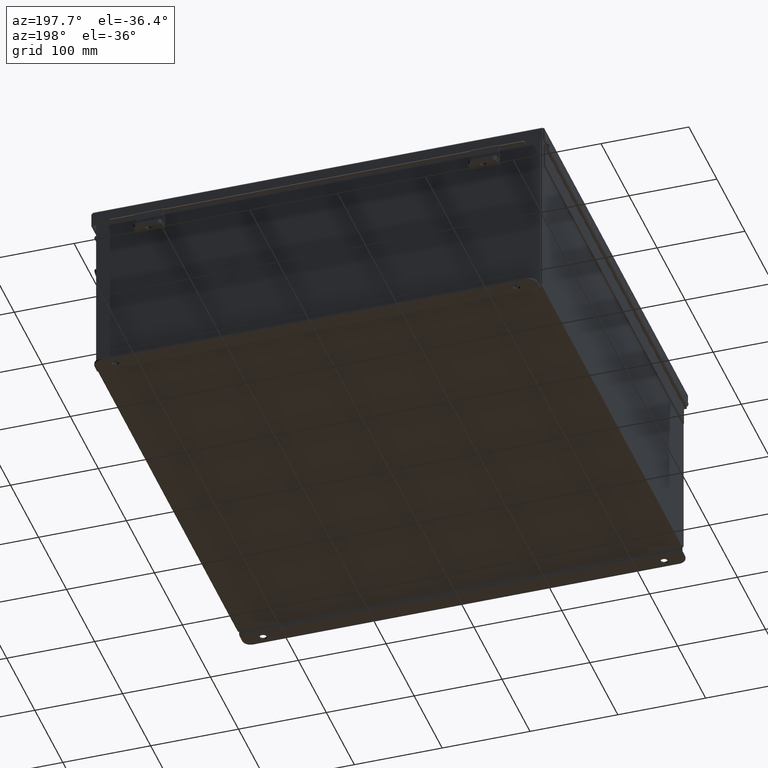
[diagram: clean part render]
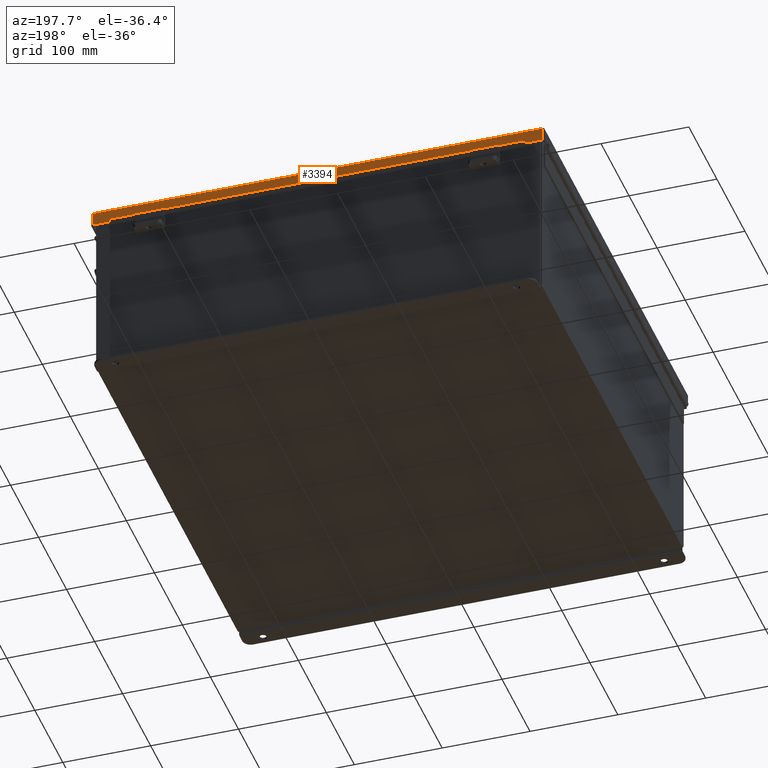
[diagram: same view with one face highlighted and labeled with its STEP entity id]
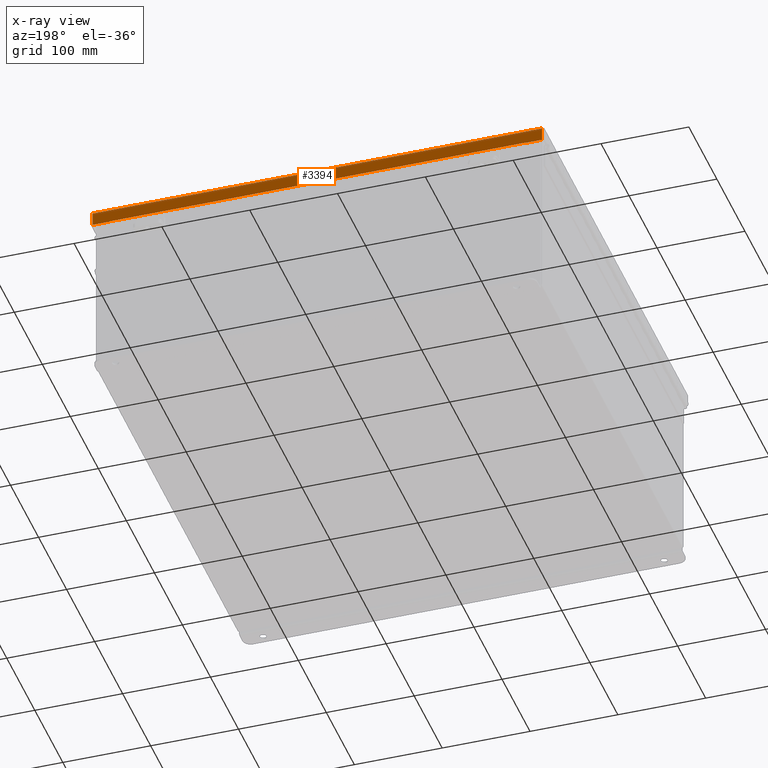
[diagram: x-ray of the same camera — body ghosted, the highlighted face saturated]
A machine part, auxiliary view. The second image highlights one B-rep face of the part: STEP entity #3394.
The next image is the same camera in x-ray: the body ghosted, the highlighted face saturated — about 0% of this face is hidden behind the body in this view.
In plain terms, the highlighted planar face has unit normal (-0, -1, -0).
Its self-contained STEP definition (entity closure, byte-faithful):
#5 = DIRECTION ( 'NONE',  ( 1.000000000000000000, 3.215538059845590000E-030, 3.362274453740340600E-018 ) ) ;
#91 = LINE ( 'NONE', #1497, #17941 ) ;
#557 = LINE ( 'NONE', #1101, #18405 ) ;
#636 = CARTESIAN_POINT ( 'NONE',  ( -9.324478932188165800, 10.15625000000000400, 0.6123000000000080600 ) ) ;
#897 = DIRECTION ( 'NONE',  ( -0.0000000000000000000, 3.569293475308532400E-015, 1.000000000000000000 ) ) ;
#1049 = VECTOR ( 'NONE', #5, 39.37007874015748100 ) ;
#1053 = CARTESIAN_POINT ( 'NONE',  ( -10.07447893218816600, 10.15625000000000200, 0.01300000000000010700 ) ) ;
#1101 = CARTESIAN_POINT ( 'NONE',  ( 9.324478932188171100, 10.15625000000000400, 0.6122999999999994000 ) ) ;
#1167 = EDGE_CURVE ( 'NONE', #10066, #12178, #557, .T. ) ;
#1497 = CARTESIAN_POINT ( 'NONE',  ( -10.07447893218816600, 10.15625000000000200, -3.606039351636827200E-014 ) ) ;
#1736 = LINE ( 'NONE', #4809, #13849 ) ;
#2929 = PLANE ( 'NONE',  #7693 ) ;
#3108 = ORIENTED_EDGE ( 'NONE', *, *, #15378, .F. ) ;
#3358 = CARTESIAN_POINT ( 'NONE',  ( 9.324478932188171100, 10.15625000000000400, 0.5967115427318793200 ) ) ;
#3377 = ORIENTED_EDGE ( 'NONE', *, *, #10867, .F. ) ;
#3394 = ADVANCED_FACE ( 'NONE', ( #21592 ), #2929, .F. ) ;
#3698 = ORIENTED_EDGE ( 'NONE', *, *, #1167, .F. ) ;
#4330 = LINE ( 'NONE', #7765, #8915 ) ;
#4664 = DIRECTION ( 'NONE',  ( -3.347543324056399800E-030, -1.000000000000000000, 3.569293475308532400E-015 ) ) ;
#4809 = CARTESIAN_POINT ( 'NONE',  ( 9.324478932188171100, 10.15625000000000200, 0.5967115427318793200 ) ) ;
#5624 = LINE ( 'NONE', #10349, #1049 ) ;
#6058 = CARTESIAN_POINT ( 'NONE',  ( -10.07447893218816600, 10.15625000000000400, 0.6123000000000080600 ) ) ;
#6251 = DIRECTION ( 'NONE',  ( -7.009925220120437100E-014, 1.401985044024085400E-013, 1.000000000000000000 ) ) ;
#6332 = DIRECTION ( 'NONE',  ( 7.009925220120712300E-014, -1.401985044024140700E-013, -1.000000000000000000 ) ) ;
#6421 = ORIENTED_EDGE ( 'NONE', *, *, #21796, .T. ) ;
#6959 = ORIENTED_EDGE ( 'NONE', *, *, #21168, .T. ) ;
#7281 = VECTOR ( 'NONE', #6251, 39.37007874015748100 ) ;
#7608 = VERTEX_POINT ( 'NONE', #1053 ) ;
#7693 = AXIS2_PLACEMENT_3D ( 'NONE', #14978, #4664, #16703 ) ;
#7765 = CARTESIAN_POINT ( 'NONE',  ( -2.134256245050205600E-018, 10.15625000000000400, 0.6122999999999994000 ) ) ;
#7869 = DIRECTION ( 'NONE',  ( 1.000000000000000000, 3.215975411700707400E-030, -0.0000000000000000000 ) ) ;
#8097 = EDGE_CURVE ( 'NONE', #12540, #10607, #11328, .T. ) ;
#8670 = VERTEX_POINT ( 'NONE', #6058 ) ;
#8786 = ORIENTED_EDGE ( 'NONE', *, *, #10358, .T. ) ;
#8915 = VECTOR ( 'NONE', #14602, 39.37007874015748100 ) ;
#10066 = VERTEX_POINT ( 'NONE', #19558 ) ;
#10349 = CARTESIAN_POINT ( 'NONE',  ( -2.134256245050205600E-018, 10.15625000000000400, 0.6122999999999994000 ) ) ;
#10358 = EDGE_CURVE ( 'NONE', #7608, #8670, #91, .T. ) ;
#10607 = VERTEX_POINT ( 'NONE', #636 ) ;
#10867 = EDGE_CURVE ( 'NONE', #12178, #12540, #1736, .T. ) ;
#11328 = LINE ( 'NONE', #16536, #7281 ) ;
#11374 = ORIENTED_EDGE ( 'NONE', *, *, #8097, .F. ) ;
#11600 = LINE ( 'NONE', #16406, #20259 ) ;
#12178 = VERTEX_POINT ( 'NONE', #3358 ) ;
#12540 = VERTEX_POINT ( 'NONE', #20424 ) ;
#12963 = CARTESIAN_POINT ( 'NONE',  ( 10.07447893218817100, 10.15625000000000200, 0.0000000000000000000 ) ) ;
#13596 = CARTESIAN_POINT ( 'NONE',  ( 10.07447893218817100, 10.15625000000000400, 0.6123000000000005100 ) ) ;
#13768 = VECTOR ( 'NONE', #897, 39.37007874015748100 ) ;
#13849 = VECTOR ( 'NONE', #20290, 39.37007874015748100 ) ;
#14602 = DIRECTION ( 'NONE',  ( 1.000000000000000000, 3.215538059845590000E-030, 3.362274453740340600E-018 ) ) ;
#14978 = CARTESIAN_POINT ( 'NONE',  ( 0.0000000000000000000, 10.15625000000000200, -3.715313271383398100E-014 ) ) ;
#15378 = EDGE_CURVE ( 'NONE', #20161, #17958, #18396, .T. ) ;
#16406 = CARTESIAN_POINT ( 'NONE',  ( 10.15625000000003600, 10.15625000000000200, 0.01299999999999901400 ) ) ;
#16536 = CARTESIAN_POINT ( 'NONE',  ( -9.324478932188164000, 10.15625000000000200, 0.5967115427318869800 ) ) ;
#16703 = DIRECTION ( 'NONE',  ( 0.0000000000000000000, -3.569293475308532400E-015, -1.000000000000000000 ) ) ;
#17011 = DIRECTION ( 'NONE',  ( 0.0000000000000000000, 3.569293475308532400E-015, 1.000000000000000000 ) ) ;
#17090 = CARTESIAN_POINT ( 'NONE',  ( 10.07447893218817100, 10.15625000000000200, 0.01300000000000010700 ) ) ;
#17941 = VECTOR ( 'NONE', #17011, 39.37007874015748100 ) ;
#17958 = VERTEX_POINT ( 'NONE', #13596 ) ;
#18396 = LINE ( 'NONE', #12963, #13768 ) ;
#18405 = VECTOR ( 'NONE', #6332, 39.37007874015748100 ) ;
#19558 = CARTESIAN_POINT ( 'NONE',  ( 9.324478932188171100, 10.15625000000000400, 0.6123000000000005100 ) ) ;
#20161 = VERTEX_POINT ( 'NONE', #17090 ) ;
#20259 = VECTOR ( 'NONE', #7869, 39.37007874015748100 ) ;
#20290 = DIRECTION ( 'NONE',  ( -1.000000000000000000, -3.215975411700707400E-030, -0.0000000000000000000 ) ) ;
#20424 = CARTESIAN_POINT ( 'NONE',  ( -9.324478932188164000, 10.15625000000000400, 0.5967115427318869800 ) ) ;
#21168 = EDGE_CURVE ( 'NONE', #10066, #17958, #4330, .T. ) ;
#21192 = EDGE_LOOP ( 'NONE', ( #3698, #6959, #3108, #21429, #8786, #6421, #11374, #3377 ) ) ;
#21429 = ORIENTED_EDGE ( 'NONE', *, *, #21489, .F. ) ;
#21489 = EDGE_CURVE ( 'NONE', #7608, #20161, #11600, .T. ) ;
#21592 = FACE_OUTER_BOUND ( 'NONE', #21192, .T. ) ;
#21796 = EDGE_CURVE ( 'NONE', #8670, #10607, #5624, .T. ) ;